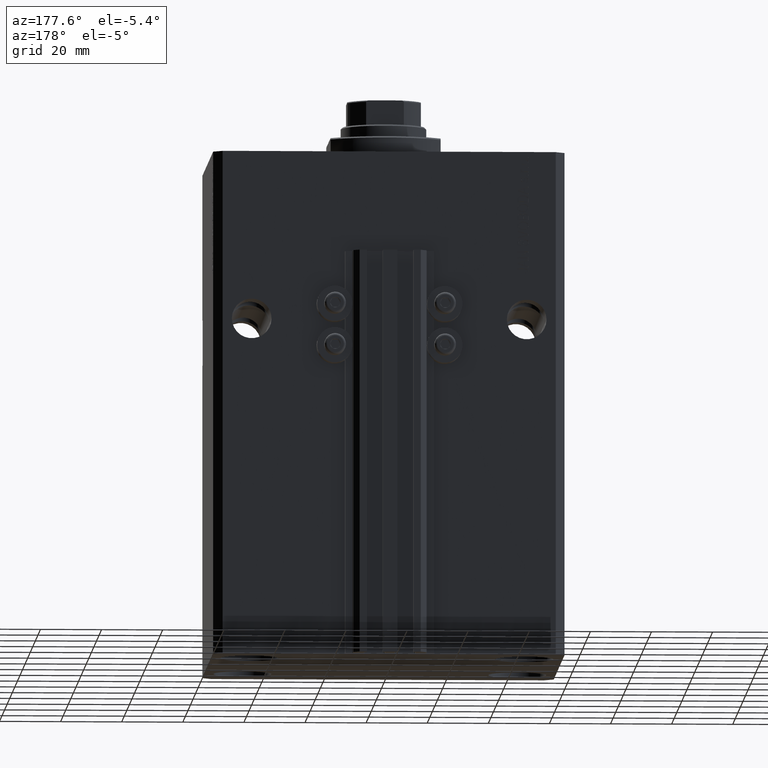
[diagram: clean part render]
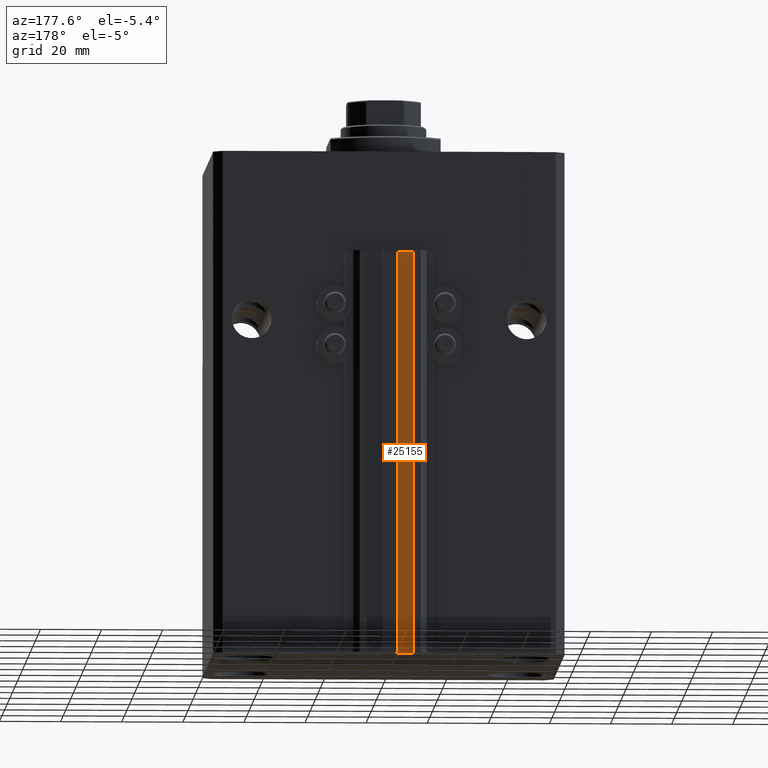
[diagram: same view with one face highlighted and labeled with its STEP entity id]
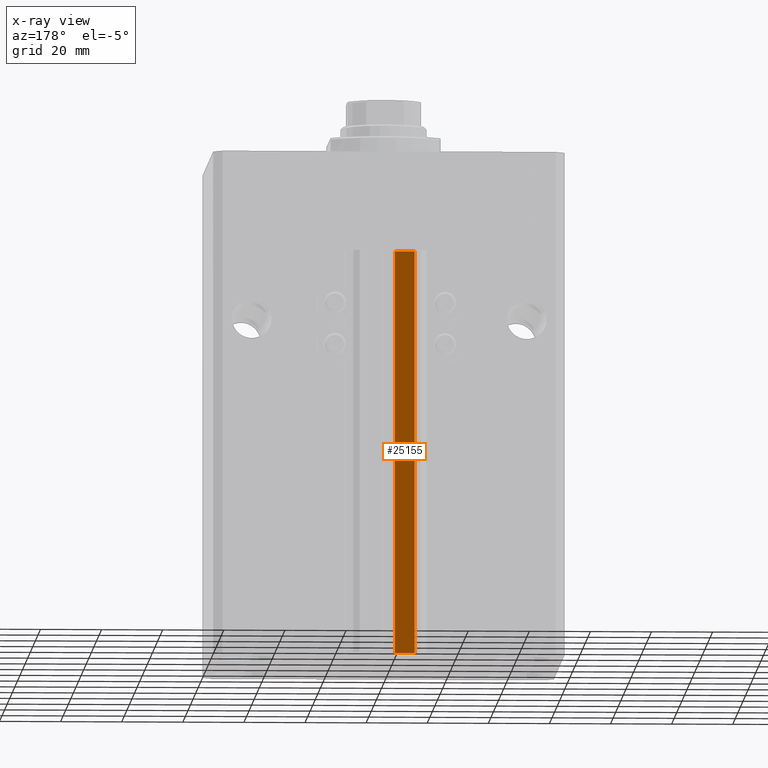
[diagram: x-ray of the same camera — body ghosted, the highlighted face saturated]
A machine part, auxiliary view. The second image highlights one B-rep face of the part: STEP entity #25155.
The next image is the same camera in x-ray: the body ghosted, the highlighted face saturated — about 0% of this face is hidden behind the body in this view.
In plain terms, the highlighted planar face has unit normal (0, 1, 0).
Its self-contained STEP definition (entity closure, byte-faithful):
#407 = VECTOR ( 'NONE', #7315, 1000.000000000000000 ) ;
#1998 = CARTESIAN_POINT ( 'NONE',  ( -1.800000000000000933, 46.99999999999999289, -165.0000000000000000 ) ) ;
#3196 = ORIENTED_EDGE ( 'NONE', *, *, #40950, .T. ) ;
#4565 = DIRECTION ( 'NONE',  ( -1.000000000000000000, 0.000000000000000000, 0.000000000000000000 ) ) ;
#7315 = DIRECTION ( 'NONE',  ( 0.000000000000000000, 0.000000000000000000, 1.000000000000000000 ) ) ;
#7552 = LINE ( 'NONE', #29202, #407 ) ;
#9797 = DIRECTION ( 'NONE',  ( -1.000000000000000000, 0.000000000000000000, 0.000000000000000000 ) ) ;
#11645 = VECTOR ( 'NONE', #9797, 1000.000000000000000 ) ;
#12717 = EDGE_CURVE ( 'NONE', #22279, #33524, #7552, .T. ) ;
#16967 = CARTESIAN_POINT ( 'NONE',  ( -8.199999999999997513, 46.99999999999999289, -33.00000000000000000 ) ) ;
#18302 = CARTESIAN_POINT ( 'NONE',  ( -1.800000000000000933, 46.99999999999999289, -165.0000000000000000 ) ) ;
#19685 = EDGE_LOOP ( 'NONE', ( #37636, #48083, #3196, #29819 ) ) ;
#19745 = PLANE ( 'NONE',  #47023 ) ;
#20217 = DIRECTION ( 'NONE',  ( 0.000000000000000000, 0.000000000000000000, 1.000000000000000000 ) ) ;
#20581 = DIRECTION ( 'NONE',  ( 0.000000000000000000, 0.000000000000000000, 1.000000000000000000 ) ) ;
#20652 = CARTESIAN_POINT ( 'NONE',  ( -1.800000000000000933, 46.99999999999999289, -165.0000000000000000 ) ) ;
#21070 = CARTESIAN_POINT ( 'NONE',  ( -1.800000000000000933, 46.99999999999999289, -165.0000000000000000 ) ) ;
#21399 = VERTEX_POINT ( 'NONE', #18302 ) ;
#22279 = VERTEX_POINT ( 'NONE', #37287 ) ;
#23919 = DIRECTION ( 'NONE',  ( 0.000000000000000000, 1.000000000000000000, -0.000000000000000000 ) ) ;
#25155 = ADVANCED_FACE ( 'NONE', ( #31527 ), #19745, .T. ) ;
#25421 = EDGE_CURVE ( 'NONE', #21399, #32524, #32130, .T. ) ;
#25978 = CARTESIAN_POINT ( 'NONE',  ( -1.800000000000000933, 46.99999999999999289, -33.00000000000000000 ) ) ;
#29202 = CARTESIAN_POINT ( 'NONE',  ( -8.199999999999997513, 46.99999999999999289, -165.0000000000000000 ) ) ;
#29819 = ORIENTED_EDGE ( 'NONE', *, *, #12717, .T. ) ;
#30660 = CARTESIAN_POINT ( 'NONE',  ( -1.800000000000000933, 46.99999999999999289, -33.00000000000000000 ) ) ;
#31527 = FACE_OUTER_BOUND ( 'NONE', #19685, .T. ) ;
#32130 = LINE ( 'NONE', #21070, #39966 ) ;
#32524 = VERTEX_POINT ( 'NONE', #25978 ) ;
#33524 = VERTEX_POINT ( 'NONE', #16967 ) ;
#37287 = CARTESIAN_POINT ( 'NONE',  ( -8.199999999999997513, 46.99999999999999289, -165.0000000000000000 ) ) ;
#37636 = ORIENTED_EDGE ( 'NONE', *, *, #43100, .F. ) ;
#37784 = LINE ( 'NONE', #30660, #39209 ) ;
#39209 = VECTOR ( 'NONE', #4565, 1000.000000000000000 ) ;
#39323 = LINE ( 'NONE', #20652, #11645 ) ;
#39966 = VECTOR ( 'NONE', #20581, 1000.000000000000000 ) ;
#40950 = EDGE_CURVE ( 'NONE', #21399, #22279, #39323, .T. ) ;
#43100 = EDGE_CURVE ( 'NONE', #32524, #33524, #37784, .T. ) ;
#47023 = AXIS2_PLACEMENT_3D ( 'NONE', #1998, #23919, #20217 ) ;
#48083 = ORIENTED_EDGE ( 'NONE', *, *, #25421, .F. ) ;